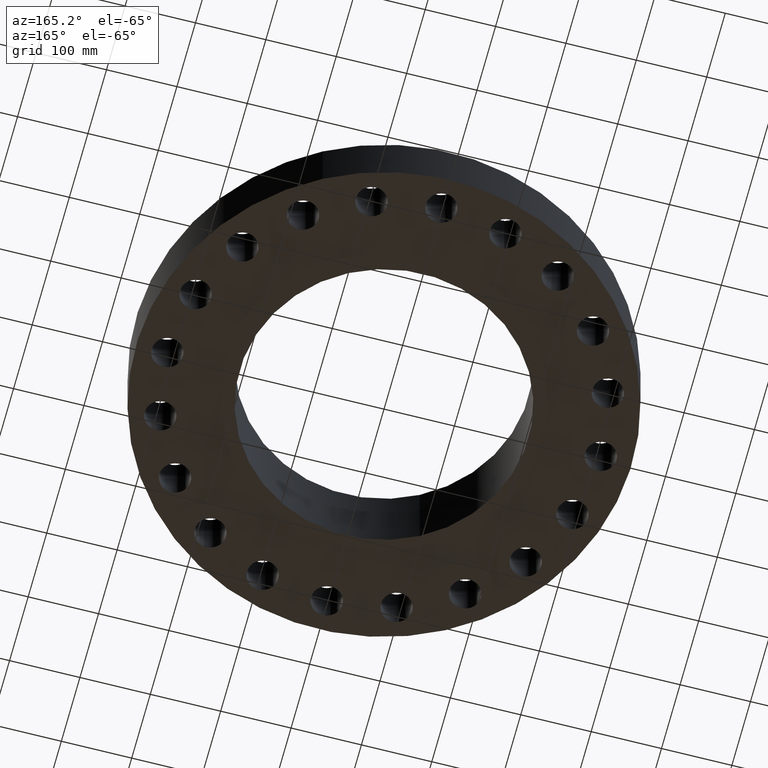
[diagram: clean part render]
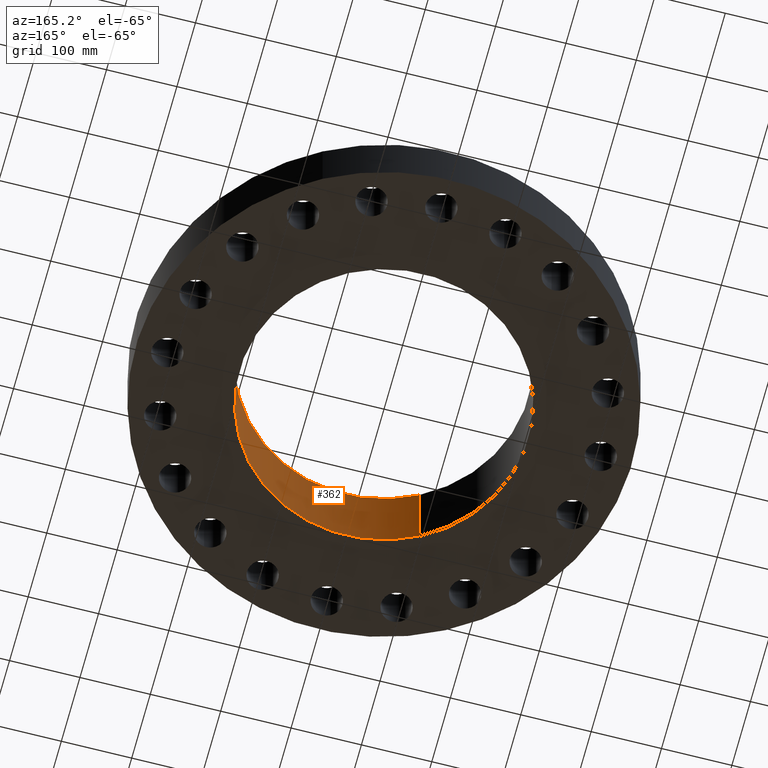
[diagram: same view with one face highlighted and labeled with its STEP entity id]
A machine part, auxiliary view. The second image highlights one B-rep face of the part: STEP entity #362.
In plain terms, the highlighted cylindrical surface (partial cylindrical patch) has radius 205.232 mm, axis along (0, 0, -1).
Its self-contained STEP definition (entity closure, byte-faithful):
#312=AXIS2_PLACEMENT_3D('Circle Axis2P3D',#310,#311,$) ;
#323=AXIS2_PLACEMENT_3D('Cylinder Axis2P3D',#320,#321,#322) ;
#353=AXIS2_PLACEMENT_3D('Circle Axis2P3D',#351,#352,$) ;
#305=CARTESIAN_POINT('Vertex',(-3.87375835194,-7.0908671001,5.25000000002)) ;
#307=CARTESIAN_POINT('Vertex',(3.87375835194,7.0908671001,5.25000000002)) ;
#310=CARTESIAN_POINT('Axis2P3D Location',(0.,0.,5.25000000002)) ;
#320=CARTESIAN_POINT('Axis2P3D Location',(0.,0.,2.62500000001)) ;
#325=CARTESIAN_POINT('Line Origine',(-3.87375835194,-7.0908671001,2.62500000001)) ;
#329=CARTESIAN_POINT('Vertex',(-3.87375835194,-7.0908671001,-1.17491318512E-014)) ;
#336=CARTESIAN_POINT('Vertex',(3.87375835194,7.0908671001,-1.17491318512E-014)) ;
#339=CARTESIAN_POINT('Line Origine',(3.87375835194,7.0908671001,2.62500000001)) ;
#351=CARTESIAN_POINT('Axis2P3D Location',(0.,0.,-1.23086143203E-014)) ;
#311=DIRECTION('Axis2P3D Direction',(0.,0.,-0.0393700787402)) ;
#321=DIRECTION('Axis2P3D Direction',(0.,0.,-0.0393700787402)) ;
#322=DIRECTION('Axis2P3D XDirection',(0.0188750212049,0.0345504945626,0.)) ;
#326=DIRECTION('Vector Direction',(0.,0.,-0.0393700787402)) ;
#340=DIRECTION('Vector Direction',(0.,0.,-0.0393700787402)) ;
#352=DIRECTION('Axis2P3D Direction',(0.,0.,-0.0393700787402)) ;
#327=VECTOR('Line Direction',#326,0.0393700787402) ;
#341=VECTOR('Line Direction',#340,0.0393700787402) ;
#357=ORIENTED_EDGE('',*,*,#314,.F.) ;
#358=ORIENTED_EDGE('',*,*,#343,.T.) ;
#359=ORIENTED_EDGE('',*,*,#355,.T.) ;
#360=ORIENTED_EDGE('',*,*,#331,.F.) ;
#362=ADVANCED_FACE('PartBody',(#361),#324,.F.) ;
#313=CIRCLE('generated circle',#312,8.08000000003) ;
#354=CIRCLE('generated circle',#353,8.08000000003) ;
#324=CYLINDRICAL_SURFACE('generated cylinder',#323,8.08000000003) ;
#314=EDGE_CURVE('',#308,#306,#313,.T.) ;
#331=EDGE_CURVE('',#306,#330,#328,.T.) ;
#343=EDGE_CURVE('',#308,#337,#342,.T.) ;
#355=EDGE_CURVE('',#337,#330,#354,.T.) ;
#356=EDGE_LOOP('',(#357,#358,#359,#360)) ;
#361=FACE_OUTER_BOUND('',#356,.T.) ;
#328=LINE('Line',#325,#327) ;
#342=LINE('Line',#339,#341) ;
#306=VERTEX_POINT('',#305) ;
#308=VERTEX_POINT('',#307) ;
#330=VERTEX_POINT('',#329) ;
#337=VERTEX_POINT('',#336) ;